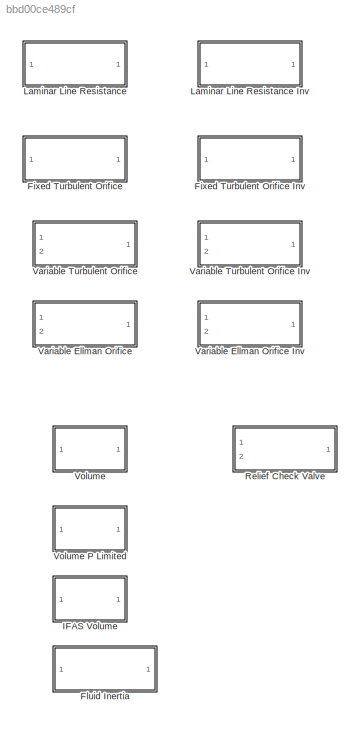
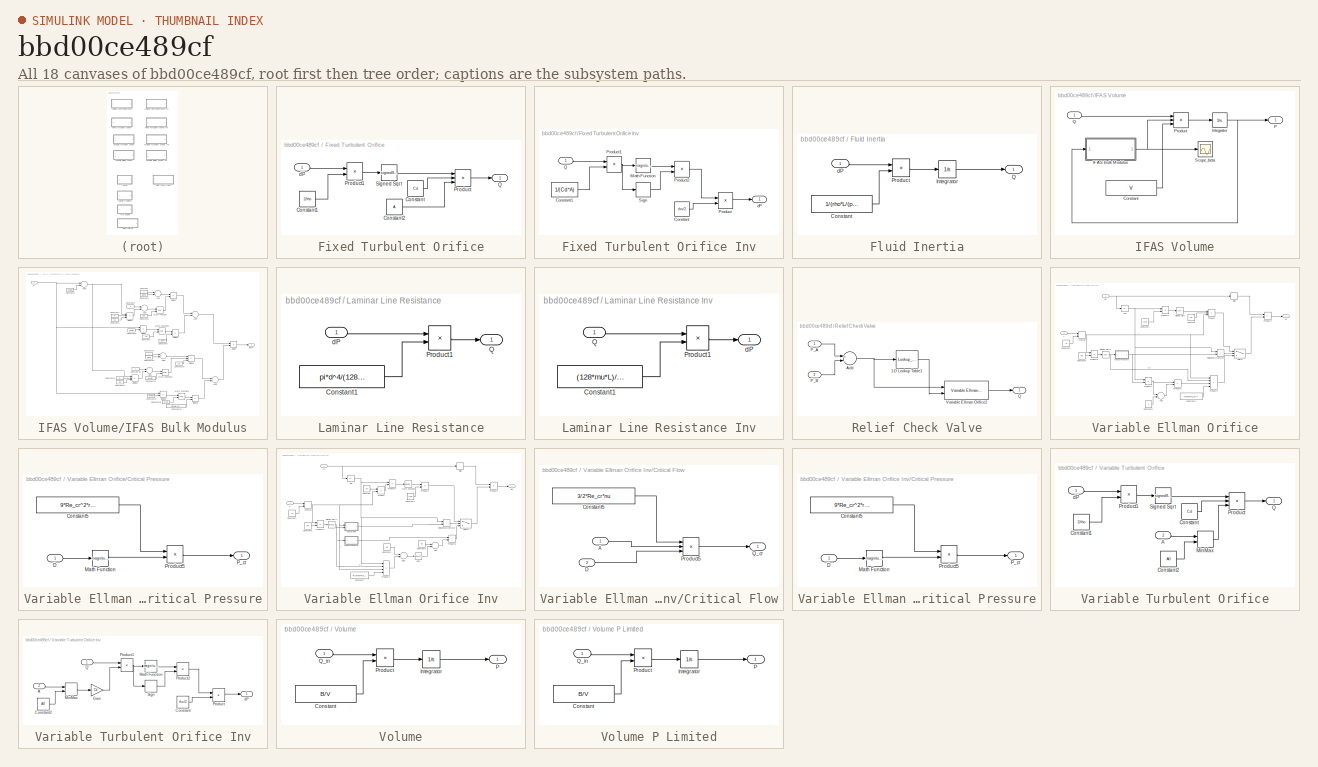
[diagram: thumbnail index - all 18 canvases of the model, root first then tree order]
MODEL slx_bbd00ce489cf
KIND library
CONFIG AbsTol = auto
CONFIG EnableMultiTasking = off
CONFIG FixedStep = auto
CONFIG MaxStep = auto
CONFIG MinStep = auto
CONFIG RelTol = 1e-3
CONFIG SampleTimeConstraint = Unconstrained
CONFIG Solver = ode45
CONFIG SolverName = ode45
CONFIG StartTime = 0.0
CONFIG StopTime = 10.0
BLOCK [SubSystem] Fixed Turbulent Orifice
  Ports = [1, 1]
  RequestExecContextInheritance = off
  Variant = off
BLOCK [SubSystem] Fixed Turbulent Orifice Inv
  Ports = [1, 1]
  RequestExecContextInheritance = off
  Variant = off
BLOCK [Constant] Fixed Turbulent Orifice Inv/Constant
  Value = rho/2
BLOCK [Constant] Fixed Turbulent Orifice Inv/Constant1
  Value = 1/(Cd*A)
BLOCK [Math] Fixed Turbulent Orifice Inv/Math Function
  Operator = magnitude^2
  Ports = [1, 1]
BLOCK [Product] Fixed Turbulent Orifice Inv/Product
  InputSameDT = off
  OutDataTypeStr = Inherit: Inherit via internal rule
  Ports = [2, 1]
  RndMeth = Floor
  SaturateOnIntegerOverflow = off
BLOCK [Product] Fixed Turbulent Orifice Inv/Product1
  InputSameDT = off
  OutDataTypeStr = Inherit: Inherit via internal rule
  Ports = [2, 1]
  RndMeth = Floor
  SaturateOnIntegerOverflow = off
BLOCK [Product] Fixed Turbulent Orifice Inv/Product2
  InputSameDT = off
  OutDataTypeStr = Inherit: Inherit via internal rule
  Ports = [2, 1]
  RndMeth = Floor
  SaturateOnIntegerOverflow = off
BLOCK [Inport] Fixed Turbulent Orifice Inv/Q
  IconDisplay = Port number
BLOCK [Signum] Fixed Turbulent Orifice Inv/Sign
BLOCK [Outport] Fixed Turbulent Orifice Inv/dP
  IconDisplay = Port number
BLOCK [Constant] Fixed Turbulent Orifice/Constant
  Value = Cd
BLOCK [Constant] Fixed Turbulent Orifice/Constant1
  Value = 2/rho
BLOCK [Constant] Fixed Turbulent Orifice/Constant2
  Value = A
BLOCK [Product] Fixed Turbulent Orifice/Product
  InputSameDT = off
  Inputs = 3
  OutDataTypeStr = Inherit: Inherit via internal rule
  Ports = [3, 1]
  RndMeth = Floor
  SaturateOnIntegerOverflow = off
BLOCK [Product] Fixed Turbulent Orifice/Product1
  InputSameDT = off
  OutDataTypeStr = Inherit: Inherit via internal rule
  Ports = [2, 1]
  RndMeth = Floor
  SaturateOnIntegerOverflow = off
BLOCK [Outport] Fixed Turbulent Orifice/Q
  IconDisplay = Port number
BLOCK [Sqrt] Fixed Turbulent Orifice/Signed Sqrt
  Operator = signedSqrt
BLOCK [Inport] Fixed Turbulent Orifice/dP
  IconDisplay = Port number
BLOCK [SubSystem] Fluid Inertia
  Ports = [1, 1]
  RequestExecContextInheritance = off
  Variant = off
BLOCK [Constant] Fluid Inertia/Constant
  Value = 1/(rho*L/(pi/4*d^2))
BLOCK [Integrator] Fluid Inertia/Integrator
  InitialCondition = Q0
  Ports = [1, 1]
  ZeroCross = off
BLOCK [Product] Fluid Inertia/Product
  InputSameDT = off
  OutDataTypeStr = Inherit: Inherit via internal rule
  Ports = [2, 1]
  RndMeth = Floor
  SaturateOnIntegerOverflow = off
BLOCK [Outport] Fluid Inertia/Q
  IconDisplay = Port number
BLOCK [Inport] Fluid Inertia/dP
  IconDisplay = Port number
BLOCK [SubSystem] IFAS Volume
  Ports = [1, 1]
  RequestExecContextInheritance = off
  Variant = off
BLOCK [Constant] IFAS Volume/Constant
  Value = V
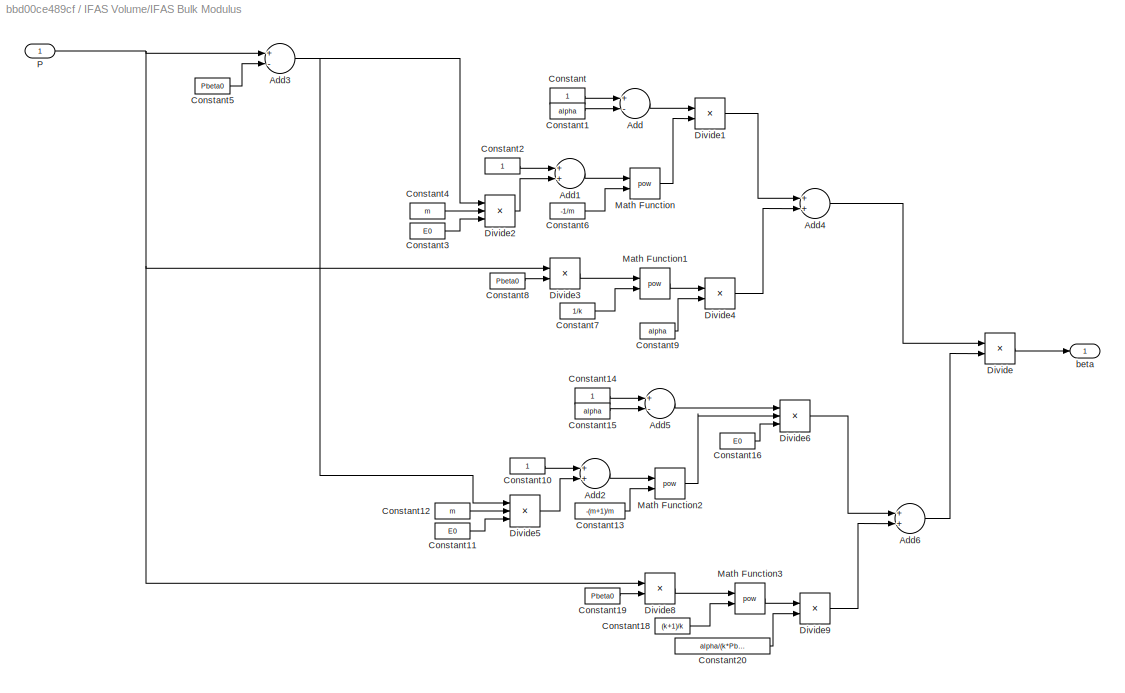
BLOCK [SubSystem] IFAS Volume/IFAS Bulk Modulus
  Ports = [1, 1]
  RequestExecContextInheritance = off
  Variant = off
BLOCK [Sum] IFAS Volume/IFAS Bulk Modulus/Add
  InputSameDT = off
  Inputs = +-
  OutDataTypeStr = Inherit: Inherit via internal rule
  Ports = [2, 1]
  SaturateOnIntegerOverflow = off
BLOCK [Sum] IFAS Volume/IFAS Bulk Modulus/Add1
  InputSameDT = off
  OutDataTypeStr = Inherit: Inherit via internal rule
  Ports = [2, 1]
  SaturateOnIntegerOverflow = off
BLOCK [Sum] IFAS Volume/IFAS Bulk Modulus/Add2
  InputSameDT = off
  OutDataTypeStr = Inherit: Inherit via internal rule
  Ports = [2, 1]
  SaturateOnIntegerOverflow = off
BLOCK [Sum] IFAS Volume/IFAS Bulk Modulus/Add3
  InputSameDT = off
  Inputs = +-
  OutDataTypeStr = Inherit: Inherit via internal rule
  Ports = [2, 1]
  SaturateOnIntegerOverflow = off
BLOCK [Sum] IFAS Volume/IFAS Bulk Modulus/Add4
  InputSameDT = off
  OutDataTypeStr = Inherit: Inherit via internal rule
  Ports = [2, 1]
  SaturateOnIntegerOverflow = off
BLOCK [Sum] IFAS Volume/IFAS Bulk Modulus/Add5
  InputSameDT = off
  Inputs = +-
  OutDataTypeStr = Inherit: Inherit via internal rule
  Ports = [2, 1]
  SaturateOnIntegerOverflow = off
BLOCK [Sum] IFAS Volume/IFAS Bulk Modulus/Add6
  InputSameDT = off
  OutDataTypeStr = Inherit: Inherit via internal rule
  Ports = [2, 1]
  SaturateOnIntegerOverflow = off
BLOCK [Constant] IFAS Volume/IFAS Bulk Modulus/Constant
BLOCK [Constant] IFAS Volume/IFAS Bulk Modulus/Constant1
  Value = alpha
BLOCK [Constant] IFAS Volume/IFAS Bulk Modulus/Constant10
BLOCK [Constant] IFAS Volume/IFAS Bulk Modulus/Constant11
  Value = E0
BLOCK [Constant] IFAS Volume/IFAS Bulk Modulus/Constant12
  Value = m
BLOCK [Constant] IFAS Volume/IFAS Bulk Modulus/Constant13
  Value = -(m+1)/m
BLOCK [Constant] IFAS Volume/IFAS Bulk Modulus/Constant14
BLOCK [Constant] IFAS Volume/IFAS Bulk Modulus/Constant15
  Value = alpha
BLOCK [Constant] IFAS Volume/IFAS Bulk Modulus/Constant16
  Value = E0
BLOCK [Constant] IFAS Volume/IFAS Bulk Modulus/Constant18
  Value = (k+1)/k
BLOCK [Constant] IFAS Volume/IFAS Bulk Modulus/Constant19
  Value = Pbeta0
BLOCK [Constant] IFAS Volume/IFAS Bulk Modulus/Constant2
BLOCK [Constant] IFAS Volume/IFAS Bulk Modulus/Constant20
  Value = alpha/(k*Pbeta0)
BLOCK [Constant] IFAS Volume/IFAS Bulk Modulus/Constant3
  Value = E0
BLOCK [Constant] IFAS Volume/IFAS Bulk Modulus/Constant4
  Value = m
BLOCK [Constant] IFAS Volume/IFAS Bulk Modulus/Constant5
  Value = Pbeta0
BLOCK [Constant] IFAS Volume/IFAS Bulk Modulus/Constant6
  Value = -1/m
BLOCK [Constant] IFAS Volume/IFAS Bulk Modulus/Constant7
  Value = 1/k
BLOCK [Constant] IFAS Volume/IFAS Bulk Modulus/Constant8
  Value = Pbeta0
BLOCK [Constant] IFAS Volume/IFAS Bulk Modulus/Constant9
  Value = alpha
BLOCK [Product] IFAS Volume/IFAS Bulk Modulus/Divide
  InputSameDT = off
  Inputs = */
  OutDataTypeStr = Inherit: Inherit via internal rule
  Ports = [2, 1]
  RndMeth = Floor
  SaturateOnIntegerOverflow = off
BLOCK [Product] IFAS Volume/IFAS Bulk Modulus/Divide1
  InputSameDT = off
  Inputs = **
  OutDataTypeStr = Inherit: Inherit via internal rule
  Ports = [2, 1]
  RndMeth = Floor
  SaturateOnIntegerOverflow = off
BLOCK [Product] IFAS Volume/IFAS Bulk Modulus/Divide2
  InputSameDT = off
  Inputs = **/
  OutDataTypeStr = Inherit: Inherit via internal rule
  Ports = [3, 1]
  RndMeth = Floor
  SaturateOnIntegerOverflow = off
BLOCK [Product] IFAS Volume/IFAS Bulk Modulus/Divide3
  InputSameDT = off
  Inputs = /*
  OutDataTypeStr = Inherit: Inherit via internal rule
  Ports = [2, 1]
  RndMeth = Floor
  SaturateOnIntegerOverflow = off
BLOCK [Product] IFAS Volume/IFAS Bulk Modulus/Divide4
  InputSameDT = off
  Inputs = **
  OutDataTypeStr = Inherit: Inherit via internal rule
  Ports = [2, 1]
  RndMeth = Floor
  SaturateOnIntegerOverflow = off
BLOCK [Product] IFAS Volume/IFAS Bulk Modulus/Divide5
  InputSameDT = off
  Inputs = **/
  OutDataTypeStr = Inherit: Inherit via internal rule
  Ports = [3, 1]
  RndMeth = Floor
  SaturateOnIntegerOverflow = off
BLOCK [Product] IFAS Volume/IFAS Bulk Modulus/Divide6
  InputSameDT = off
  Inputs = **/
  OutDataTypeStr = Inherit: Inherit via internal rule
  Ports = [3, 1]
  RndMeth = Floor
  SaturateOnIntegerOverflow = off
BLOCK [Product] IFAS Volume/IFAS Bulk Modulus/Divide8
  InputSameDT = off
  Inputs = /*
  OutDataTypeStr = Inherit: Inherit via internal rule
  Ports = [2, 1]
  RndMeth = Floor
  SaturateOnIntegerOverflow = off
BLOCK [Product] IFAS Volume/IFAS Bulk Modulus/Divide9
  InputSameDT = off
  Inputs = **
  OutDataTypeStr = Inherit: Inherit via internal rule
  Ports = [2, 1]
  RndMeth = Floor
  SaturateOnIntegerOverflow = off
BLOCK [Math] IFAS Volume/IFAS Bulk Modulus/Math Function
  Operator = pow
  Ports = [2, 1]
BLOCK [Math] IFAS Volume/IFAS Bulk Modulus/Math Function1
  Operator = pow
  Ports = [2, 1]
BLOCK [Math] IFAS Volume/IFAS Bulk Modulus/Math Function2
  Operator = pow
  Ports = [2, 1]
BLOCK [Math] IFAS Volume/IFAS Bulk Modulus/Math Function3
  Operator = pow
  Ports = [2, 1]
BLOCK [Inport] IFAS Volume/IFAS Bulk Modulus/P
  IconDisplay = Port number
BLOCK [Outport] IFAS Volume/IFAS Bulk Modulus/beta
  IconDisplay = Port number
BLOCK [Integrator] IFAS Volume/Integrator
  InitialCondition = P0
  Ports = [1, 1]
  ZeroCross = off
BLOCK [Outport] IFAS Volume/P
  IconDisplay = Port number
BLOCK [Product] IFAS Volume/Product
  InputSameDT = off
  Inputs = **/
  OutDataTypeStr = Inherit: Inherit via internal rule
  Ports = [3, 1]
  RndMeth = Floor
  SaturateOnIntegerOverflow = off
BLOCK [Inport] IFAS Volume/Q
  IconDisplay = Port number
BLOCK [Scope] IFAS Volume/Scope_beta
  NumInputPorts = 1
  Ports = [1]
  ScopeSpecificationString = C++SS(StrPVP('Location','[575, 557, 899, 796]'),StrPVP('Open','off'),MxPVP('AxesTitles',53,'struct(''axes1'',''%<SignalLabel>'')'),MxPVP('ScopeGraphics',56,'struct(''FigureColor'',''[0.5 0.5 0.5]'',''AxesColor'',''[0 0 0]'',''AxesTickColor'',''[1 1 1]'',''LineColors'',''[1 1 0;1 0 1;0 1 1;1 0 0;0 1 0;0 0 1]'',''LineStyles'',''-|-|-|-|-|-'',''LineWidths'',''[0.5 0.5 0.5 0.5 0.5 0.5]'',''MarkerStyle...<+196ch>
BLOCK [SubSystem] Laminar Line Resistance
  Ports = [1, 1]
  RequestExecContextInheritance = off
  Variant = off
BLOCK [SubSystem] Laminar Line Resistance Inv
  Ports = [1, 1]
  RequestExecContextInheritance = off
  Variant = off
BLOCK [Constant] Laminar Line Resistance Inv/Constant1
  Value = (128*mu*L)/(pi*d^4)
BLOCK [Product] Laminar Line Resistance Inv/Product1
  InputSameDT = off
  OutDataTypeStr = Inherit: Inherit via internal rule
  Ports = [2, 1]
  RndMeth = Floor
  SaturateOnIntegerOverflow = off
BLOCK [Inport] Laminar Line Resistance Inv/Q
  IconDisplay = Port number
BLOCK [Outport] Laminar Line Resistance Inv/dP
  IconDisplay = Port number
BLOCK [Constant] Laminar Line Resistance/Constant1
  Value = pi*d^4/(128*mu*L)
BLOCK [Product] Laminar Line Resistance/Product1
  InputSameDT = off
  OutDataTypeStr = Inherit: Inherit via internal rule
  Ports = [2, 1]
  RndMeth = Floor
  SaturateOnIntegerOverflow = off
BLOCK [Outport] Laminar Line Resistance/Q
  IconDisplay = Port number
BLOCK [Inport] Laminar Line Resistance/dP
  IconDisplay = Port number
BLOCK [SubSystem] Relief Check Valve
  Ports = [2, 1]
  RequestExecContextInheritance = off
  Variant = off
BLOCK [Lookup_n-D] Relief Check Valve/1-D Lookup Table1
  BreakpointsForDimension1 = [P_cr P_cr+dP_or]
  ExtrapMethod = Clip
  InternalRulePriority = Speed
  NumberOfTableDimensions = 1
  Ports = [1, 1]
  RndMeth = Simplest
  Table = A_max*[0 1]
BLOCK [Sum] Relief Check Valve/Add
  InputSameDT = off
  Inputs = +-
  OutDataTypeStr = Inherit: Inherit via internal rule
  Ports = [2, 1]
  SaturateOnIntegerOverflow = off
BLOCK [Inport] Relief Check Valve/P_A
  IconDisplay = Port number
BLOCK [Inport] Relief Check Valve/P_B
  IconDisplay = Port number
  Port = 2
BLOCK [Outport] Relief Check Valve/Q
  IconDisplay = Port number
BLOCK [Reference] Relief Check Valve/Variable Ellman Orifice2  REF=usask_hyd_lib_simulink/Variable Ellman Orifice  (lib defined in slx_bbd00ce489cf)
  Ports = [2, 1]
  SourceBlock = usask_hyd_lib_simulink/Variable Ellman Orifice
  SourceProductName = USask Hydraulic Library Simulink
  SourceType = Turbulent Orifice
BLOCK [SubSystem] Variable Ellman Orifice
  Ports = [2, 1]
  RequestExecContextInheritance = off
  Variant = off
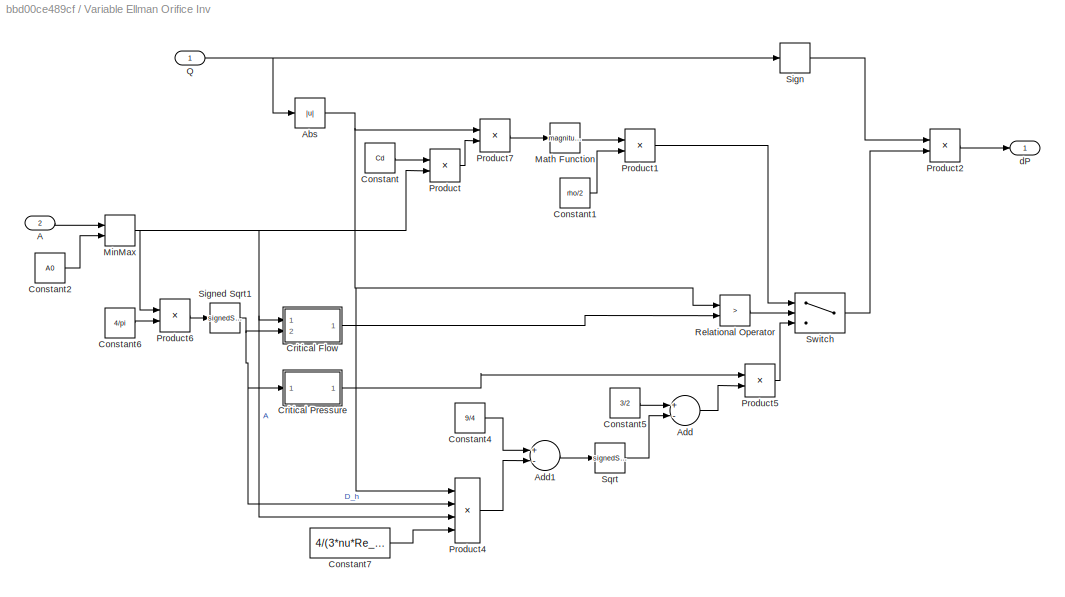
BLOCK [SubSystem] Variable Ellman Orifice Inv
  Ports = [2, 1]
  RequestExecContextInheritance = off
  Variant = off
BLOCK [Inport] Variable Ellman Orifice Inv/A
  IconDisplay = Port number
  Port = 2
BLOCK [Abs] Variable Ellman Orifice Inv/Abs
  SaturateOnIntegerOverflow = off
BLOCK [Sum] Variable Ellman Orifice Inv/Add
  InputSameDT = off
  Inputs = +-
  OutDataTypeStr = Inherit: Inherit via internal rule
  Ports = [2, 1]
  SaturateOnIntegerOverflow = off
BLOCK [Sum] Variable Ellman Orifice Inv/Add1
  InputSameDT = off
  Inputs = +-
  OutDataTypeStr = Inherit: Inherit via internal rule
  Ports = [2, 1]
  SaturateOnIntegerOverflow = off
BLOCK [Constant] Variable Ellman Orifice Inv/Constant
  Value = Cd
BLOCK [Constant] Variable Ellman Orifice Inv/Constant1
  Value = rho/2
BLOCK [Constant] Variable Ellman Orifice Inv/Constant2
  Value = A0
BLOCK [Constant] Variable Ellman Orifice Inv/Constant4
  Value = 9/4
BLOCK [Constant] Variable Ellman Orifice Inv/Constant5
  Value = 3/2
BLOCK [Constant] Variable Ellman Orifice Inv/Constant6
  Value = 4/pi
BLOCK [Constant] Variable Ellman Orifice Inv/Constant7
  Value = 4/(3*nu*Re_cr)
BLOCK [SubSystem] Variable Ellman Orifice Inv/Critical Flow
  Ports = [2, 1]
  RequestExecContextInheritance = off
  Variant = off
BLOCK [Inport] Variable Ellman Orifice Inv/Critical Flow/A
  IconDisplay = Port number
BLOCK [Constant] Variable Ellman Orifice Inv/Critical Flow/Constant5
  Value = 3/2*Re_cr*nu
BLOCK [Inport] Variable Ellman Orifice Inv/Critical Flow/D
  IconDisplay = Port number
  Port = 2
BLOCK [Product] Variable Ellman Orifice Inv/Critical Flow/Product5
  InputSameDT = off
  Inputs = **/
  OutDataTypeStr = Inherit: Inherit via internal rule
  Ports = [3, 1]
  RndMeth = Floor
  SaturateOnIntegerOverflow = off
BLOCK [Outport] Variable Ellman Orifice Inv/Critical Flow/Q_cr
  IconDisplay = Port number
BLOCK [SubSystem] Variable Ellman Orifice Inv/Critical Pressure
  Ports = [1, 1]
  RequestExecContextInheritance = off
  Variant = off
BLOCK [Constant] Variable Ellman Orifice Inv/Critical Pressure/Constant5
  Value = 9*Re_cr^2*rho*nu^2/(8*Cd^2)
BLOCK [Inport] Variable Ellman Orifice Inv/Critical Pressure/D
  IconDisplay = Port number
BLOCK [Math] Variable Ellman Orifice Inv/Critical Pressure/Math Function
  Operator = magnitude^2
  Ports = [1, 1]
BLOCK [Outport] Variable Ellman Orifice Inv/Critical Pressure/P_cr
  IconDisplay = Port number
BLOCK [Product] Variable Ellman Orifice Inv/Critical Pressure/Product5
  InputSameDT = off
  Inputs = */
  OutDataTypeStr = Inherit: Inherit via internal rule
  Ports = [2, 1]
  RndMeth = Floor
  SaturateOnIntegerOverflow = off
BLOCK [Math] Variable Ellman Orifice Inv/Math Function
  Operator = magnitude^2
  Ports = [1, 1]
BLOCK [MinMax] Variable Ellman Orifice Inv/MinMax
  Function = max
  InputSameDT = off
  Inputs = 2
  Ports = [2, 1]
  SaturateOnIntegerOverflow = off
BLOCK [Product] Variable Ellman Orifice Inv/Product
  InputSameDT = off
  OutDataTypeStr = Inherit: Inherit via internal rule
  Ports = [2, 1]
  RndMeth = Floor
  SaturateOnIntegerOverflow = off
BLOCK [Product] Variable Ellman Orifice Inv/Product1
  InputSameDT = off
  OutDataTypeStr = Inherit: Inherit via internal rule
  Ports = [2, 1]
  RndMeth = Floor
  SaturateOnIntegerOverflow = off
BLOCK [Product] Variable Ellman Orifice Inv/Product2
  InputSameDT = off
  OutDataTypeStr = Inherit: Inherit via internal rule
  Ports = [2, 1]
  RndMeth = Floor
  SaturateOnIntegerOverflow = off
BLOCK [Product] Variable Ellman Orifice Inv/Product4
  InputSameDT = off
  Inputs = **/*
  OutDataTypeStr = Inherit: Inherit via internal rule
  Ports = [4, 1]
  RndMeth = Floor
  SaturateOnIntegerOverflow = off
BLOCK [Product] Variable Ellman Orifice Inv/Product5
  InputSameDT = off
  Inputs = **
  OutDataTypeStr = Inherit: Inherit via internal rule
  Ports = [2, 1]
  RndMeth = Floor
  SaturateOnIntegerOverflow = off
BLOCK [Product] Variable Ellman Orifice Inv/Product6
  InputSameDT = off
  OutDataTypeStr = Inherit: Inherit via internal rule
  Ports = [2, 1]
  RndMeth = Floor
  SaturateOnIntegerOverflow = off
BLOCK [Product] Variable Ellman Orifice Inv/Product7
  InputSameDT = off
  Inputs = */
  OutDataTypeStr = Inherit: Inherit via internal rule
  Ports = [2, 1]
  RndMeth = Floor
  SaturateOnIntegerOverflow = off
BLOCK [Inport] Variable Ellman Orifice Inv/Q
  IconDisplay = Port number
BLOCK [RelationalOperator] Variable Ellman Orifice Inv/Relational Operator
  InputSameDT = off
  Operator = >
  OutDataTypeStr = boolean
  Ports = [2, 1]
BLOCK [Signum] Variable Ellman Orifice Inv/Sign
  ZeroCross = off
BLOCK [Sqrt] Variable Ellman Orifice Inv/Signed Sqrt1
  Operator = signedSqrt
BLOCK [Sqrt] Variable Ellman Orifice Inv/Sqrt
  Operator = signedSqrt
BLOCK [Switch] Variable Ellman Orifice Inv/Switch
  Criteria = u2 ~= 0
  InputSameDT = off
  SaturateOnIntegerOverflow = off
  ZeroCross = off
BLOCK [Outport] Variable Ellman Orifice Inv/dP
  IconDisplay = Port number
BLOCK [Inport] Variable Ellman Orifice/A
  IconDisplay = Port number
  Port = 2
BLOCK [Abs] Variable Ellman Orifice/Abs
  SaturateOnIntegerOverflow = off
  ZeroCross = off
BLOCK [Sum] Variable Ellman Orifice/Add
  InputSameDT = off
  Inputs = -+
  OutDataTypeStr = Inherit: Inherit via internal rule
  Ports = [2, 1]
  SaturateOnIntegerOverflow = off
BLOCK [Constant] Variable Ellman Orifice/Constant
  Value = Cd
BLOCK [Constant] Variable Ellman Orifice/Constant1
  Value = 2/rho
BLOCK [Constant] Variable Ellman Orifice/Constant2
  Value = A0
BLOCK [Constant] Variable Ellman Orifice/Constant3
  Value = 3*nu*Re_cr/4
BLOCK [Constant] Variable Ellman Orifice/Constant5
  Value = 3
BLOCK [Constant] Variable Ellman Orifice/Constant6
  Value = 4/pi
BLOCK [SubSystem] Variable Ellman Orifice/Critical Pressure
  Ports = [1, 1]
  RequestExecContextInheritance = off
  Variant = off
BLOCK [Constant] Variable Ellman Orifice/Critical Pressure/Constant5
  Value = 9*Re_cr^2*rho*nu^2/(8*Cd^2)
BLOCK [Inport] Variable Ellman Orifice/Critical Pressure/D
  IconDisplay = Port number
BLOCK [Math] Variable Ellman Orifice/Critical Pressure/Math Function
  Operator = magnitude^2
  Ports = [1, 1]
BLOCK [Outport] Variable Ellman Orifice/Critical Pressure/P_cr
  IconDisplay = Port number
BLOCK [Product] Variable Ellman Orifice/Critical Pressure/Product5
  InputSameDT = off
  Inputs = */
  OutDataTypeStr = Inherit: Inherit via internal rule
  Ports = [2, 1]
  RndMeth = Floor
  SaturateOnIntegerOverflow = off
BLOCK [MinMax] Variable Ellman Orifice/MinMax
  Function = max
  InputSameDT = off
  Inputs = 2
  Ports = [2, 1]
  SaturateOnIntegerOverflow = off
BLOCK [Product] Variable Ellman Orifice/Product
  InputSameDT = off
  Inputs = 3
  OutDataTypeStr = Inherit: Inherit via internal rule
  Ports = [3, 1]
  RndMeth = Floor
  SaturateOnIntegerOverflow = off
BLOCK [Product] Variable Ellman Orifice/Product1
  InputSameDT = off
  OutDataTypeStr = Inherit: Inherit via internal rule
  Ports = [2, 1]
  RndMeth = Floor
  SaturateOnIntegerOverflow = off
BLOCK [Product] Variable Ellman Orifice/Product2
  InputSameDT = off
  OutDataTypeStr = Inherit: Inherit via internal rule
  Ports = [2, 1]
  RndMeth = Floor
  SaturateOnIntegerOverflow = off
BLOCK [Product] Variable Ellman Orifice/Product3
  InputSameDT = off
  Inputs = */**
  OutDataTypeStr = Inherit: Inherit via internal rule
  Ports = [4, 1]
  RndMeth = Floor
  SaturateOnIntegerOverflow = off
BLOCK [Product] Variable Ellman Orifice/Product4
  InputSameDT = off
  Inputs = */
  OutDataTypeStr = Inherit: Inherit via internal rule
  Ports = [2, 1]
  RndMeth = Floor
  SaturateOnIntegerOverflow = off
BLOCK [Product] Variable Ellman Orifice/Product5
  InputSameDT = off
  Inputs = **
  OutDataTypeStr = Inherit: Inherit via internal rule
  Ports = [2, 1]
  RndMeth = Floor
  SaturateOnIntegerOverflow = off
BLOCK [Product] Variable Ellman Orifice/Product6
  InputSameDT = off
  OutDataTypeStr = Inherit: Inherit via internal rule
  Ports = [2, 1]
  RndMeth = Floor
  SaturateOnIntegerOverflow = off
BLOCK [Outport] Variable Ellman Orifice/Q
  IconDisplay = Port number
BLOCK [RelationalOperator] Variable Ellman Orifice/Relational Operator
  InputSameDT = off
  Operator = >
  OutDataTypeStr = boolean
  Ports = [2, 1]
  ZeroCross = off
BLOCK [Signum] Variable Ellman Orifice/Sign
  ZeroCross = off
BLOCK [Sqrt] Variable Ellman Orifice/Signed Sqrt
BLOCK [Sqrt] Variable Ellman Orifice/Signed Sqrt1
BLOCK [Switch] Variable Ellman Orifice/Switch
  Criteria = u2 ~= 0
  InputSameDT = off
  SaturateOnIntegerOverflow = off
  ZeroCross = off
BLOCK [Inport] Variable Ellman Orifice/dP
  IconDisplay = Port number
BLOCK [SubSystem] Variable Turbulent Orifice
  Ports = [2, 1]
  RequestExecContextInheritance = off
  Variant = off
BLOCK [SubSystem] Variable Turbulent Orifice Inv
  Ports = [2, 1]
  RequestExecContextInheritance = off
  Variant = off
BLOCK [Inport] Variable Turbulent Orifice Inv/A
  IconDisplay = Port number
  Port = 2
BLOCK [Constant] Variable Turbulent Orifice Inv/Constant
  Value = rho/2
BLOCK [Constant] Variable Turbulent Orifice Inv/Constant2
  Value = A0
BLOCK [Gain] Variable Turbulent Orifice Inv/Gain
  Gain = Cd
  OutDataTypeStr = Inherit: Inherit via internal rule
  ParamDataTypeStr = Inherit: Inherit via internal rule
  SaturateOnIntegerOverflow = off
BLOCK [Math] Variable Turbulent Orifice Inv/Math Function
  Operator = magnitude^2
  Ports = [1, 1]
BLOCK [MinMax] Variable Turbulent Orifice Inv/MinMax
  Function = max
  InputSameDT = off
  Inputs = 2
  Ports = [2, 1]
  SaturateOnIntegerOverflow = off
BLOCK [Product] Variable Turbulent Orifice Inv/Product
  InputSameDT = off
  OutDataTypeStr = Inherit: Inherit via internal rule
  Ports = [2, 1]
  RndMeth = Floor
  SaturateOnIntegerOverflow = off
BLOCK [Product] Variable Turbulent Orifice Inv/Product1
  InputSameDT = off
  Inputs = */
  OutDataTypeStr = Inherit: Inherit via internal rule
  Ports = [2, 1]
  RndMeth = Floor
  SaturateOnIntegerOverflow = off
BLOCK [Product] Variable Turbulent Orifice Inv/Product2
  InputSameDT = off
  OutDataTypeStr = Inherit: Inherit via internal rule
  Ports = [2, 1]
  RndMeth = Floor
  SaturateOnIntegerOverflow = off
BLOCK [Inport] Variable Turbulent Orifice Inv/Q
  IconDisplay = Port number
BLOCK [Signum] Variable Turbulent Orifice Inv/Sign
BLOCK [Outport] Variable Turbulent Orifice Inv/dP
  IconDisplay = Port number
BLOCK [Inport] Variable Turbulent Orifice/A
  IconDisplay = Port number
  Port = 2
BLOCK [Constant] Variable Turbulent Orifice/Constant
  Value = Cd
BLOCK [Constant] Variable Turbulent Orifice/Constant1
  Value = 2/rho
BLOCK [Constant] Variable Turbulent Orifice/Constant2
  Value = A0
BLOCK [MinMax] Variable Turbulent Orifice/MinMax
  Function = max
  InputSameDT = off
  Inputs = 2
  Ports = [2, 1]
  SaturateOnIntegerOverflow = off
BLOCK [Product] Variable Turbulent Orifice/Product
  InputSameDT = off
  Inputs = 3
  OutDataTypeStr = Inherit: Inherit via internal rule
  Ports = [3, 1]
  RndMeth = Floor
  SaturateOnIntegerOverflow = off
BLOCK [Product] Variable Turbulent Orifice/Product1
  InputSameDT = off
  OutDataTypeStr = Inherit: Inherit via internal rule
  Ports = [2, 1]
  RndMeth = Floor
  SaturateOnIntegerOverflow = off
BLOCK [Outport] Variable Turbulent Orifice/Q
  IconDisplay = Port number
BLOCK [Sqrt] Variable Turbulent Orifice/Signed Sqrt
  Operator = signedSqrt
BLOCK [Inport] Variable Turbulent Orifice/dP
  IconDisplay = Port number
BLOCK [SubSystem] Volume
  Ports = [1, 1]
  RequestExecContextInheritance = off
  Variant = off
BLOCK [SubSystem] Volume P Limited
  Ports = [1, 1]
  RequestExecContextInheritance = off
  Variant = off
BLOCK [Constant] Volume P Limited/Constant
  Value = B/V
BLOCK [Integrator] Volume P Limited/Integrator
  InitialCondition = P0
  LimitOutput = on
  LowerSaturationLimit = P_min
  Ports = [1, 1]
  UpperSaturationLimit = P_max
BLOCK [Outport] Volume P Limited/P
  IconDisplay = Port number
BLOCK [Product] Volume P Limited/Product
  InputSameDT = off
  OutDataTypeStr = Inherit: Inherit via internal rule
  Ports = [2, 1]
  RndMeth = Floor
  SaturateOnIntegerOverflow = off
BLOCK [Inport] Volume P Limited/Q_in
  IconDisplay = Port number
BLOCK [Constant] Volume/Constant
  Value = B/V
BLOCK [Integrator] Volume/Integrator
  InitialCondition = P0
  Ports = [1, 1]
  ZeroCross = off
BLOCK [Outport] Volume/P
  IconDisplay = Port number
BLOCK [Product] Volume/Product
  InputSameDT = off
  OutDataTypeStr = Inherit: Inherit via internal rule
  Ports = [2, 1]
  RndMeth = Floor
  SaturateOnIntegerOverflow = off
BLOCK [Inport] Volume/Q_in
  IconDisplay = Port number
LINE Fixed Turbulent Orifice Inv/Constant1:1 -> Fixed Turbulent Orifice Inv/Product1:2
LINE Fixed Turbulent Orifice Inv/Constant:1 -> Fixed Turbulent Orifice Inv/Product:2
LINE Fixed Turbulent Orifice Inv/Math Function:1 -> Fixed Turbulent Orifice Inv/Product2:1
NET Fixed Turbulent Orifice Inv/Product1:1 -> Fixed Turbulent Orifice Inv/Math Function:1, Fixed Turbulent Orifice Inv/Sign:1
LINE Fixed Turbulent Orifice Inv/Product2:1 -> Fixed Turbulent Orifice Inv/Product:1
LINE Fixed Turbulent Orifice Inv/Product:1 -> Fixed Turbulent Orifice Inv/dP:1
LINE Fixed Turbulent Orifice Inv/Q:1 -> Fixed Turbulent Orifice Inv/Product1:1
LINE Fixed Turbulent Orifice Inv/Sign:1 -> Fixed Turbulent Orifice Inv/Product2:2
LINE Fixed Turbulent Orifice/Constant1:1 -> Fixed Turbulent Orifice/Product1:2
LINE Fixed Turbulent Orifice/Constant2:1 -> Fixed Turbulent Orifice/Product:3
LINE Fixed Turbulent Orifice/Constant:1 -> Fixed Turbulent Orifice/Product:2
LINE Fixed Turbulent Orifice/Product1:1 -> Fixed Turbulent Orifice/Signed Sqrt:1
LINE Fixed Turbulent Orifice/Product:1 -> Fixed Turbulent Orifice/Q:1
LINE Fixed Turbulent Orifice/Signed Sqrt:1 -> Fixed Turbulent Orifice/Product:1
LINE Fixed Turbulent Orifice/dP:1 -> Fixed Turbulent Orifice/Product1:1
LINE Fluid Inertia/Constant:1 -> Fluid Inertia/Product:2
LINE Fluid Inertia/Integrator:1 -> Fluid Inertia/Q:1
LINE Fluid Inertia/Product:1 -> Fluid Inertia/Integrator:1
LINE Fluid Inertia/dP:1 -> Fluid Inertia/Product:1
LINE IFAS Volume/Constant:1 -> IFAS Volume/Product:3
LINE IFAS Volume/IFAS Bulk Modulus/Add1:1 -> IFAS Volume/IFAS Bulk Modulus/Math Function:1
LINE IFAS Volume/IFAS Bulk Modulus/Add2:1 -> IFAS Volume/IFAS Bulk Modulus/Math Function2:1
NET IFAS Volume/IFAS Bulk Modulus/Add3:1 -> IFAS Volume/IFAS Bulk Modulus/Divide2:1, IFAS Volume/IFAS Bulk Modulus/Divide5:1
LINE IFAS Volume/IFAS Bulk Modulus/Add4:1 -> IFAS Volume/IFAS Bulk Modulus/Divide:1
LINE IFAS Volume/IFAS Bulk Modulus/Add5:1 -> IFAS Volume/IFAS Bulk Modulus/Divide6:1
LINE IFAS Volume/IFAS Bulk Modulus/Add6:1 -> IFAS Volume/IFAS Bulk Modulus/Divide:2
LINE IFAS Volume/IFAS Bulk Modulus/Add:1 -> IFAS Volume/IFAS Bulk Modulus/Divide1:1
LINE IFAS Volume/IFAS Bulk Modulus/Constant10:1 -> IFAS Volume/IFAS Bulk Modulus/Add2:1
LINE IFAS Volume/IFAS Bulk Modulus/Constant11:1 -> IFAS Volume/IFAS Bulk Modulus/Divide5:3
LINE IFAS Volume/IFAS Bulk Modulus/Constant12:1 -> IFAS Volume/IFAS Bulk Modulus/Divide5:2
LINE IFAS Volume/IFAS Bulk Modulus/Constant13:1 -> IFAS Volume/IFAS Bulk Modulus/Math Function2:2
LINE IFAS Volume/IFAS Bulk Modulus/Constant14:1 -> IFAS Volume/IFAS Bulk Modulus/Add5:1
LINE IFAS Volume/IFAS Bulk Modulus/Constant15:1 -> IFAS Volume/IFAS Bulk Modulus/Add5:2
LINE IFAS Volume/IFAS Bulk Modulus/Constant16:1 -> IFAS Volume/IFAS Bulk Modulus/Divide6:3
LINE IFAS Volume/IFAS Bulk Modulus/Constant18:1 -> IFAS Volume/IFAS Bulk Modulus/Math Function3:2
LINE IFAS Volume/IFAS Bulk Modulus/Constant19:1 -> IFAS Volume/IFAS Bulk Modulus/Divide8:2
LINE IFAS Volume/IFAS Bulk Modulus/Constant1:1 -> IFAS Volume/IFAS Bulk Modulus/Add:2
LINE IFAS Volume/IFAS Bulk Modulus/Constant20:1 -> IFAS Volume/IFAS Bulk Modulus/Divide9:2
LINE IFAS Volume/IFAS Bulk Modulus/Constant2:1 -> IFAS Volume/IFAS Bulk Modulus/Add1:1
LINE IFAS Volume/IFAS Bulk Modulus/Constant3:1 -> IFAS Volume/IFAS Bulk Modulus/Divide2:3
LINE IFAS Volume/IFAS Bulk Modulus/Constant4:1 -> IFAS Volume/IFAS Bulk Modulus/Divide2:2
LINE IFAS Volume/IFAS Bulk Modulus/Constant5:1 -> IFAS Volume/IFAS Bulk Modulus/Add3:2
LINE IFAS Volume/IFAS Bulk Modulus/Constant6:1 -> IFAS Volume/IFAS Bulk Modulus/Math Function:2
LINE IFAS Volume/IFAS Bulk Modulus/Constant7:1 -> IFAS Volume/IFAS Bulk Modulus/Math Function1:2
LINE IFAS Volume/IFAS Bulk Modulus/Constant8:1 -> IFAS Volume/IFAS Bulk Modulus/Divide3:2
LINE IFAS Volume/IFAS Bulk Modulus/Constant9:1 -> IFAS Volume/IFAS Bulk Modulus/Divide4:2
LINE IFAS Volume/IFAS Bulk Modulus/Constant:1 -> IFAS Volume/IFAS Bulk Modulus/Add:1
LINE IFAS Volume/IFAS Bulk Modulus/Divide1:1 -> IFAS Volume/IFAS Bulk Modulus/Add4:1
LINE IFAS Volume/IFAS Bulk Modulus/Divide2:1 -> IFAS Volume/IFAS Bulk Modulus/Add1:2
LINE IFAS Volume/IFAS Bulk Modulus/Divide3:1 -> IFAS Volume/IFAS Bulk Modulus/Math Function1:1
LINE IFAS Volume/IFAS Bulk Modulus/Divide4:1 -> IFAS Volume/IFAS Bulk Modulus/Add4:2
LINE IFAS Volume/IFAS Bulk Modulus/Divide5:1 -> IFAS Volume/IFAS Bulk Modulus/Add2:2
LINE IFAS Volume/IFAS Bulk Modulus/Divide6:1 -> IFAS Volume/IFAS Bulk Modulus/Add6:1
LINE IFAS Volume/IFAS Bulk Modulus/Divide8:1 -> IFAS Volume/IFAS Bulk Modulus/Math Function3:1
LINE IFAS Volume/IFAS Bulk Modulus/Divide9:1 -> IFAS Volume/IFAS Bulk Modulus/Add6:2
LINE IFAS Volume/IFAS Bulk Modulus/Divide:1 -> IFAS Volume/IFAS Bulk Modulus/beta:1
LINE IFAS Volume/IFAS Bulk Modulus/Math Function1:1 -> IFAS Volume/IFAS Bulk Modulus/Divide4:1
LINE IFAS Volume/IFAS Bulk Modulus/Math Function2:1 -> IFAS Volume/IFAS Bulk Modulus/Divide6:2
LINE IFAS Volume/IFAS Bulk Modulus/Math Function3:1 -> IFAS Volume/IFAS Bulk Modulus/Divide9:1
LINE IFAS Volume/IFAS Bulk Modulus/Math Function:1 -> IFAS Volume/IFAS Bulk Modulus/Divide1:2
NET IFAS Volume/IFAS Bulk Modulus/P:1 -> IFAS Volume/IFAS Bulk Modulus/Add3:1, IFAS Volume/IFAS Bulk Modulus/Divide3:1, IFAS Volume/IFAS Bulk Modulus/Divide8:1
NET IFAS Volume/IFAS Bulk Modulus:1 -> IFAS Volume/Product:2, IFAS Volume/Scope_beta:1
NET IFAS Volume/Integrator:1 -> IFAS Volume/IFAS Bulk Modulus:1, IFAS Volume/P:1
LINE IFAS Volume/Product:1 -> IFAS Volume/Integrator:1
LINE IFAS Volume/Q:1 -> IFAS Volume/Product:1
LINE Laminar Line Resistance Inv/Constant1:1 -> Laminar Line Resistance Inv/Product1:2
LINE Laminar Line Resistance Inv/Product1:1 -> Laminar Line Resistance Inv/dP:1
LINE Laminar Line Resistance Inv/Q:1 -> Laminar Line Resistance Inv/Product1:1
LINE Laminar Line Resistance/Constant1:1 -> Laminar Line Resistance/Product1:2
LINE Laminar Line Resistance/Product1:1 -> Laminar Line Resistance/Q:1
LINE Laminar Line Resistance/dP:1 -> Laminar Line Resistance/Product1:1
LINE Relief Check Valve/1-D Lookup Table1:1 -> Relief Check Valve/Variable Ellman Orifice2:2
NET Relief Check Valve/Add:1 -> Relief Check Valve/1-D Lookup Table1:1, Relief Check Valve/Variable Ellman Orifice2:1
LINE Relief Check Valve/P_A:1 -> Relief Check Valve/Add:1
LINE Relief Check Valve/P_B:1 -> Relief Check Valve/Add:2
LINE Relief Check Valve/Variable Ellman Orifice2:1 -> Relief Check Valve/Q:1
LINE Variable Ellman Orifice Inv/A:1 -> Variable Ellman Orifice Inv/MinMax:1
NET Variable Ellman Orifice Inv/Abs:1 -> Variable Ellman Orifice Inv/Product4:1, Variable Ellman Orifice Inv/Product7:1, Variable Ellman Orifice Inv/Relational Operator:1
LINE Variable Ellman Orifice Inv/Add1:1 -> Variable Ellman Orifice Inv/Sqrt:1
LINE Variable Ellman Orifice Inv/Add:1 -> Variable Ellman Orifice Inv/Product5:2
LINE Variable Ellman Orifice Inv/Constant1:1 -> Variable Ellman Orifice Inv/Product1:2
LINE Variable Ellman Orifice Inv/Constant2:1 -> Variable Ellman Orifice Inv/MinMax:2
LINE Variable Ellman Orifice Inv/Constant4:1 -> Variable Ellman Orifice Inv/Add1:1
LINE Variable Ellman Orifice Inv/Constant5:1 -> Variable Ellman Orifice Inv/Add:1
LINE Variable Ellman Orifice Inv/Constant6:1 -> Variable Ellman Orifice Inv/Product6:2
LINE Variable Ellman Orifice Inv/Constant7:1 -> Variable Ellman Orifice Inv/Product4:4
LINE Variable Ellman Orifice Inv/Constant:1 -> Variable Ellman Orifice Inv/Product:1
LINE Variable Ellman Orifice Inv/Critical Flow/A:1 -> Variable Ellman Orifice Inv/Critical Flow/Product5:2
LINE Variable Ellman Orifice Inv/Critical Flow/Constant5:1 -> Variable Ellman Orifice Inv/Critical Flow/Product5:1
LINE Variable Ellman Orifice Inv/Critical Flow/D:1 -> Variable Ellman Orifice Inv/Critical Flow/Product5:3
LINE Variable Ellman Orifice Inv/Critical Flow/Product5:1 -> Variable Ellman Orifice Inv/Critical Flow/Q_cr:1
LINE Variable Ellman Orifice Inv/Critical Flow:1 -> Variable Ellman Orifice Inv/Relational Operator:2
LINE Variable Ellman Orifice Inv/Critical Pressure/Constant5:1 -> Variable Ellman Orifice Inv/Critical Pressure/Product5:1
LINE Variable Ellman Orifice Inv/Critical Pressure/D:1 -> Variable Ellman Orifice Inv/Critical Pressure/Math Function:1
LINE Variable Ellman Orifice Inv/Critical Pressure/Math Function:1 -> Variable Ellman Orifice Inv/Critical Pressure/Product5:2
LINE Variable Ellman Orifice Inv/Critical Pressure/Product5:1 -> Variable Ellman Orifice Inv/Critical Pressure/P_cr:1
LINE Variable Ellman Orifice Inv/Critical Pressure:1 -> Variable Ellman Orifice Inv/Product5:1
LINE Variable Ellman Orifice Inv/Math Function:1 -> Variable Ellman Orifice Inv/Product1:1
NET Variable Ellman Orifice Inv/MinMax:1 -> Variable Ellman Orifice Inv/Critical Flow:1, Variable Ellman Orifice Inv/Product4:3, Variable Ellman Orifice Inv/Product6:1, Variable Ellman Orifice Inv/Product:2
LINE Variable Ellman Orifice Inv/Product1:1 -> Variable Ellman Orifice Inv/Switch:1
LINE Variable Ellman Orifice Inv/Product2:1 -> Variable Ellman Orifice Inv/dP:1
LINE Variable Ellman Orifice Inv/Product4:1 -> Variable Ellman Orifice Inv/Add1:2
LINE Variable Ellman Orifice Inv/Product5:1 -> Variable Ellman Orifice Inv/Switch:3
LINE Variable Ellman Orifice Inv/Product6:1 -> Variable Ellman Orifice Inv/Signed Sqrt1:1
LINE Variable Ellman Orifice Inv/Product7:1 -> Variable Ellman Orifice Inv/Math Function:1
LINE Variable Ellman Orifice Inv/Product:1 -> Variable Ellman Orifice Inv/Product7:2
NET Variable Ellman Orifice Inv/Q:1 -> Variable Ellman Orifice Inv/Abs:1, Variable Ellman Orifice Inv/Sign:1
LINE Variable Ellman Orifice Inv/Relational Operator:1 -> Variable Ellman Orifice Inv/Switch:2
LINE Variable Ellman Orifice Inv/Sign:1 -> Variable Ellman Orifice Inv/Product2:1
NET Variable Ellman Orifice Inv/Signed Sqrt1:1 -> Variable Ellman Orifice Inv/Critical Flow:2, Variable Ellman Orifice Inv/Critical Pressure:1, Variable Ellman Orifice Inv/Product4:2
LINE Variable Ellman Orifice Inv/Sqrt:1 -> Variable Ellman Orifice Inv/Add:2
LINE Variable Ellman Orifice Inv/Switch:1 -> Variable Ellman Orifice Inv/Product2:2
LINE Variable Ellman Orifice/A:1 -> Variable Ellman Orifice/MinMax:1
NET Variable Ellman Orifice/Abs:1 -> Variable Ellman Orifice/Product1:1, Variable Ellman Orifice/Product4:1, Variable Ellman Orifice/Relational Operator:1
LINE Variable Ellman Orifice/Add:1 -> Variable Ellman Orifice/Product5:2
LINE Variable Ellman Orifice/Constant1:1 -> Variable Ellman Orifice/Product1:2
LINE Variable Ellman Orifice/Constant2:1 -> Variable Ellman Orifice/MinMax:2
LINE Variable Ellman Orifice/Constant3:1 -> Variable Ellman Orifice/Product3:4
LINE Variable Ellman Orifice/Constant5:1 -> Variable Ellman Orifice/Add:2
LINE Variable Ellman Orifice/Constant6:1 -> Variable Ellman Orifice/Product6:2
LINE Variable Ellman Orifice/Constant:1 -> Variable Ellman Orifice/Product:2
LINE Variable Ellman Orifice/Critical Pressure/Constant5:1 -> Variable Ellman Orifice/Critical Pressure/Product5:1
LINE Variable Ellman Orifice/Critical Pressure/D:1 -> Variable Ellman Orifice/Critical Pressure/Math Function:1
LINE Variable Ellman Orifice/Critical Pressure/Math Function:1 -> Variable Ellman Orifice/Critical Pressure/Product5:2
LINE Variable Ellman Orifice/Critical Pressure/Product5:1 -> Variable Ellman Orifice/Critical Pressure/P_cr:1
NET Variable Ellman Orifice/Critical Pressure:1 -> Variable Ellman Orifice/Product4:2, Variable Ellman Orifice/Relational Operator:2
NET Variable Ellman Orifice/MinMax:1 -> Variable Ellman Orifice/Product3:1, Variable Ellman Orifice/Product6:1, Variable Ellman Orifice/Product:3
LINE Variable Ellman Orifice/Product1:1 -> Variable Ellman Orifice/Signed Sqrt:1
LINE Variable Ellman Orifice/Product2:1 -> Variable Ellman Orifice/Q:1
LINE Variable Ellman Orifice/Product3:1 -> Variable Ellman Orifice/Switch:3
NET Variable Ellman Orifice/Product4:1 -> Variable Ellman Orifice/Add:1, Variable Ellman Orifice/Product5:1
LINE Variable Ellman Orifice/Product5:1 -> Variable Ellman Orifice/Product3:3
LINE Variable Ellman Orifice/Product6:1 -> Variable Ellman Orifice/Signed Sqrt1:1
LINE Variable Ellman Orifice/Product:1 -> Variable Ellman Orifice/Switch:1
LINE Variable Ellman Orifice/Relational Operator:1 -> Variable Ellman Orifice/Switch:2
LINE Variable Ellman Orifice/Sign:1 -> Variable Ellman Orifice/Product2:1
NET Variable Ellman Orifice/Signed Sqrt1:1 -> Variable Ellman Orifice/Critical Pressure:1, Variable Ellman Orifice/Product3:2
LINE Variable Ellman Orifice/Signed Sqrt:1 -> Variable Ellman Orifice/Product:1
LINE Variable Ellman Orifice/Switch:1 -> Variable Ellman Orifice/Product2:2
NET Variable Ellman Orifice/dP:1 -> Variable Ellman Orifice/Abs:1, Variable Ellman Orifice/Sign:1
LINE Variable Turbulent Orifice Inv/A:1 -> Variable Turbulent Orifice Inv/MinMax:1
LINE Variable Turbulent Orifice Inv/Constant2:1 -> Variable Turbulent Orifice Inv/MinMax:2
LINE Variable Turbulent Orifice Inv/Constant:1 -> Variable Turbulent Orifice Inv/Product:2
LINE Variable Turbulent Orifice Inv/Gain:1 -> Variable Turbulent Orifice Inv/Product1:2
LINE Variable Turbulent Orifice Inv/Math Function:1 -> Variable Turbulent Orifice Inv/Product2:1
LINE Variable Turbulent Orifice Inv/MinMax:1 -> Variable Turbulent Orifice Inv/Gain:1
NET Variable Turbulent Orifice Inv/Product1:1 -> Variable Turbulent Orifice Inv/Math Function:1, Variable Turbulent Orifice Inv/Sign:1
LINE Variable Turbulent Orifice Inv/Product2:1 -> Variable Turbulent Orifice Inv/Product:1
LINE Variable Turbulent Orifice Inv/Product:1 -> Variable Turbulent Orifice Inv/dP:1
LINE Variable Turbulent Orifice Inv/Q:1 -> Variable Turbulent Orifice Inv/Product1:1
LINE Variable Turbulent Orifice Inv/Sign:1 -> Variable Turbulent Orifice Inv/Product2:2
LINE Variable Turbulent Orifice/A:1 -> Variable Turbulent Orifice/MinMax:1
LINE Variable Turbulent Orifice/Constant1:1 -> Variable Turbulent Orifice/Product1:2
LINE Variable Turbulent Orifice/Constant2:1 -> Variable Turbulent Orifice/MinMax:2
LINE Variable Turbulent Orifice/Constant:1 -> Variable Turbulent Orifice/Product:2
LINE Variable Turbulent Orifice/MinMax:1 -> Variable Turbulent Orifice/Product:3
LINE Variable Turbulent Orifice/Product1:1 -> Variable Turbulent Orifice/Signed Sqrt:1
LINE Variable Turbulent Orifice/Product:1 -> Variable Turbulent Orifice/Q:1
LINE Variable Turbulent Orifice/Signed Sqrt:1 -> Variable Turbulent Orifice/Product:1
LINE Variable Turbulent Orifice/dP:1 -> Variable Turbulent Orifice/Product1:1
LINE Volume P Limited/Constant:1 -> Volume P Limited/Product:2
LINE Volume P Limited/Integrator:1 -> Volume P Limited/P:1
LINE Volume P Limited/Product:1 -> Volume P Limited/Integrator:1
LINE Volume P Limited/Q_in:1 -> Volume P Limited/Product:1
LINE Volume/Constant:1 -> Volume/Product:2
LINE Volume/Integrator:1 -> Volume/P:1
LINE Volume/Product:1 -> Volume/Integrator:1
LINE Volume/Q_in:1 -> Volume/Product:1
note: NET lines group one-source signal fan-out (src -> all destinations, sorted); 1:1 wires keep LINE
